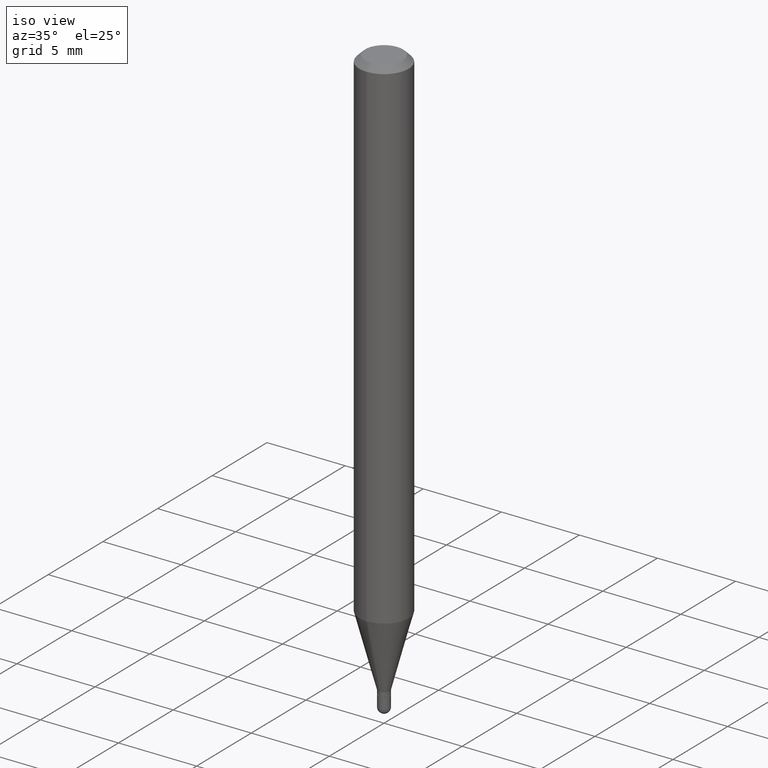
[diagram: clean part render]
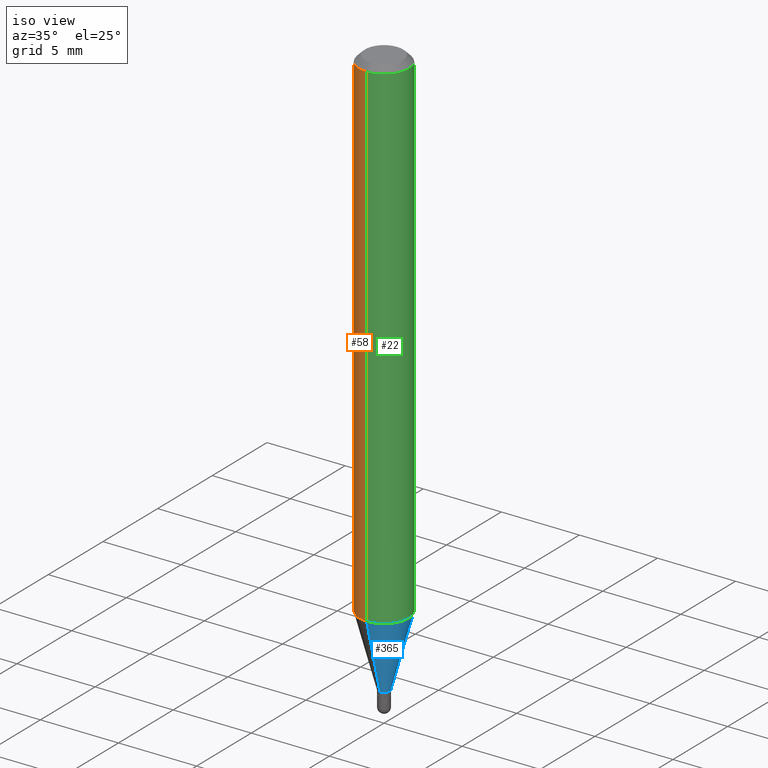
[diagram: same view with three faces highlighted in distinct colors, each labeled with its STEP entity id]
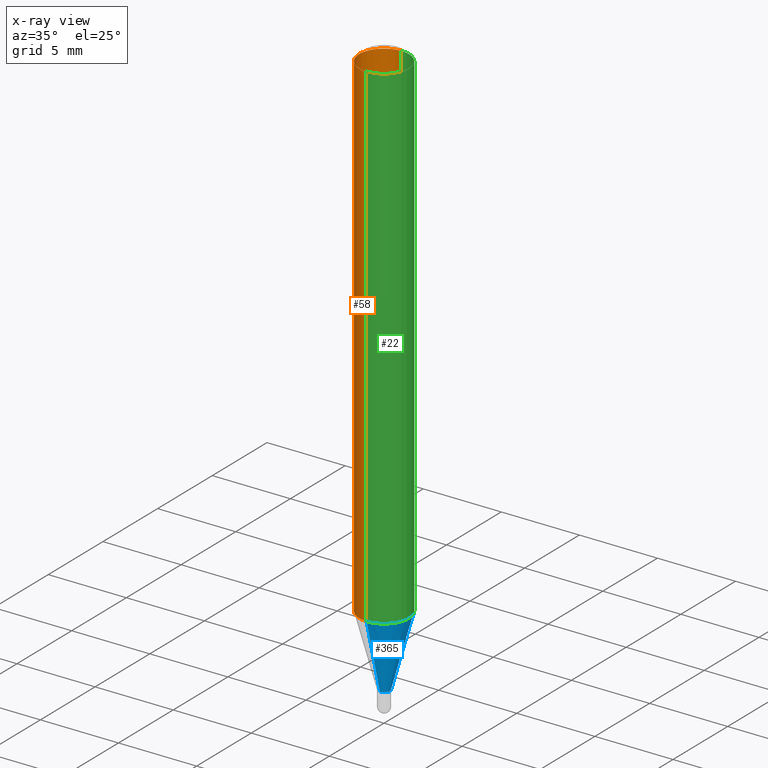
[diagram: x-ray of the same camera — body ghosted, the three highlighted faces saturated]
A machine part, iso view with three faces highlighted in distinct colors.
The next image is the same camera in x-ray (body ghosted, the three faces saturated) — at least one of them is partly hidden behind the body in this view.
Their STEP definitions:

[orange] entity #58 — the highlighted cylindrical surface (edge-blend (fillet) strip) has radius 1.5875 mm, axis along (-0, 0, 1).
#10 = DIRECTION ( 'NONE',  ( -2.445481349067954687E-29, 3.491463376721053422E-15, 1.000000000000000000 ) ) ;
#47 = VERTEX_POINT ( 'NONE', #221 ) ;
#58 = ADVANCED_FACE ( 'NONE', ( #141 ), #139, .T. ) ;
#63 = CIRCLE ( 'NONE', #275, 0.06250000000000000000 ) ;
#71 = DIRECTION ( 'NONE',  ( -6.982962677686265922E-15, -1.000000000000000000, 3.491463376721053028E-15 ) ) ;
#72 = EDGE_CURVE ( 'NONE', #211, #237, #224, .T. ) ;
#76 = CIRCLE ( 'NONE', #440, 0.06250000000000000000 ) ;
#90 = DIRECTION ( 'NONE',  ( -2.445481349067954687E-29, 3.491463376721053422E-15, 1.000000000000000000 ) ) ;
#108 = AXIS2_PLACEMENT_3D ( 'NONE', #109, #145, #71 ) ;
#109 = CARTESIAN_POINT ( 'NONE',  ( 0.000000000000000000, 0.000000000000000000, 0.000000000000000000 ) ) ;
#115 = CARTESIAN_POINT ( 'NONE',  ( 4.440892098500937762E-16, 0.06249999999999993755, -0.01499999999999997863 ) ) ;
#139 = CYLINDRICAL_SURFACE ( 'NONE', #108, 0.06250000000000000000 ) ;
#141 = FACE_OUTER_BOUND ( 'NONE', #278, .T. ) ;
#145 = DIRECTION ( 'NONE',  ( -2.445481349067954687E-29, 3.491463376721053422E-15, 1.000000000000000000 ) ) ;
#192 = VECTOR ( 'NONE', #381, 39.37007874015748143 ) ;
#195 = CARTESIAN_POINT ( 'NONE',  ( -4.364351673553916201E-16, -0.06250000000000000000, 2.182164610450658142E-16 ) ) ;
#207 = VERTEX_POINT ( 'NONE', #280 ) ;
#211 = VERTEX_POINT ( 'NONE', #228 ) ;
#216 = ORIENTED_EDGE ( 'NONE', *, *, #223, .T. ) ;
#221 = CARTESIAN_POINT ( 'NONE',  ( -4.364351673553912750E-16, -0.06250000000000005551, -0.01499999999999954321 ) ) ;
#223 = EDGE_CURVE ( 'NONE', #207, #47, #438, .T. ) ;
#224 = LINE ( 'NONE', #341, #192 ) ;
#228 = CARTESIAN_POINT ( 'NONE',  ( 4.440892098500933817E-16, 0.06249999999999555911, -1.266861561236694467 ) ) ;
#232 = DIRECTION ( 'NONE',  ( -2.445481349067954967E-29, 3.491463376721053817E-15, 1.000000000000000000 ) ) ;
#237 = VERTEX_POINT ( 'NONE', #115 ) ;
#248 = ORIENTED_EDGE ( 'NONE', *, *, #373, .F. ) ;
#275 = AXIS2_PLACEMENT_3D ( 'NONE', #445, #90, #323 ) ;
#278 = EDGE_LOOP ( 'NONE', ( #432, #454, #216, #248 ) ) ;
#280 = CARTESIAN_POINT ( 'NONE',  ( -4.364351673553606573E-16, -0.06250000000000442701, -1.266861561236694023 ) ) ;
#323 = DIRECTION ( 'NONE',  ( -6.982962677686265922E-15, -1.000000000000000000, 4.370956789862821150E-15 ) ) ;
#337 = EDGE_CURVE ( 'NONE', #211, #207, #63, .T. ) ;
#341 = CARTESIAN_POINT ( 'NONE',  ( 4.440892098500625669E-16, 0.06250000000000000000, -2.182164610450658142E-16 ) ) ;
#373 = EDGE_CURVE ( 'NONE', #237, #47, #76, .T. ) ;
#381 = DIRECTION ( 'NONE',  ( -2.445481349067954967E-29, 3.491463376721053817E-15, 1.000000000000000000 ) ) ;
#412 = CARTESIAN_POINT ( 'NONE',  ( 3.668222023601873193E-31, -5.237195065081496267E-17, -0.01499999999999976179 ) ) ;
#432 = ORIENTED_EDGE ( 'NONE', *, *, #72, .F. ) ;
#438 = LINE ( 'NONE', #195, #482 ) ;
#440 = AXIS2_PLACEMENT_3D ( 'NONE', #412, #10, #493 ) ;
#445 = CARTESIAN_POINT ( 'NONE',  ( 3.098086319855446191E-29, -4.423200744433573842E-15, -1.266861561236694245 ) ) ;
#454 = ORIENTED_EDGE ( 'NONE', *, *, #337, .T. ) ;
#482 = VECTOR ( 'NONE', #232, 39.37007874015748143 ) ;
#493 = DIRECTION ( 'NONE',  ( -6.982962677686265922E-15, -1.000000000000000000, 3.483106191921935554E-15 ) ) ;

[blue] entity #365 — the highlighted conical surface has half-angle 15 deg.
#36 = LINE ( 'NONE', #400, #267 ) ;
#45 = VECTOR ( 'NONE', #473, 39.37007874015748854 ) ;
#68 = CIRCLE ( 'NONE', #359, 0.01449999999999992441 ) ;
#78 = ORIENTED_EDGE ( 'NONE', *, *, #241, .F. ) ;
#85 = CARTESIAN_POINT ( 'NONE',  ( 2.735589532676716016E-16, 0.01449999999999487463, -1.445999999999999730 ) ) ;
#96 = FACE_OUTER_BOUND ( 'NONE', #113, .T. ) ;
#102 = DIRECTION ( 'NONE',  ( -2.445481349067954687E-29, 3.491463376721053422E-15, 1.000000000000000000 ) ) ;
#105 = DIRECTION ( 'NONE',  ( -6.982962677686265922E-15, -1.000000000000000000, 4.370956789862821150E-15 ) ) ;
#113 = EDGE_LOOP ( 'NONE', ( #209, #122, #165, #78 ) ) ;
#122 = ORIENTED_EDGE ( 'NONE', *, *, #233, .T. ) ;
#134 = EDGE_CURVE ( 'NONE', #207, #211, #222, .T. ) ;
#153 = CARTESIAN_POINT ( 'NONE',  ( -1.012529588264149623E-16, -0.01450000000000497419, -1.445999999999999730 ) ) ;
#155 = DIRECTION ( 'NONE',  ( 1.839019923739601893E-15, 0.2588190451025252359, 0.9659258262890670910 ) ) ;
#165 = ORIENTED_EDGE ( 'NONE', *, *, #134, .F. ) ;
#201 = CARTESIAN_POINT ( 'NONE',  ( 3.536166030752262621E-29, -5.048656042738642851E-15, -1.445999999999999730 ) ) ;
#203 = EDGE_CURVE ( 'NONE', #452, #486, #68, .T. ) ;
#207 = VERTEX_POINT ( 'NONE', #280 ) ;
#209 = ORIENTED_EDGE ( 'NONE', *, *, #203, .T. ) ;
#211 = VERTEX_POINT ( 'NONE', #228 ) ;
#222 = CIRCLE ( 'NONE', #464, 0.06250000000000000000 ) ;
#228 = CARTESIAN_POINT ( 'NONE',  ( 4.440892098500933817E-16, 0.06249999999999555911, -1.266861561236694467 ) ) ;
#233 = EDGE_CURVE ( 'NONE', #486, #211, #36, .T. ) ;
#241 = EDGE_CURVE ( 'NONE', #452, #207, #320, .T. ) ;
#254 = DIRECTION ( 'NONE',  ( -2.445481349067954687E-29, 3.491463376721053422E-15, 1.000000000000000000 ) ) ;
#267 = VECTOR ( 'NONE', #155, 39.37007874015748854 ) ;
#271 = DIRECTION ( 'NONE',  ( -6.982962677686265922E-15, -1.000000000000000000, 0.000000000000000000 ) ) ;
#280 = CARTESIAN_POINT ( 'NONE',  ( -4.364351673553606573E-16, -0.06250000000000442701, -1.266861561236694023 ) ) ;
#294 = CARTESIAN_POINT ( 'NONE',  ( -1.012529588264149623E-16, -0.01450000000000497419, -1.445999999999999730 ) ) ;
#304 = CARTESIAN_POINT ( 'NONE',  ( 3.098086319855446191E-29, -4.423200744433573842E-15, -1.266861561236694245 ) ) ;
#320 = LINE ( 'NONE', #153, #45 ) ;
#336 = DIRECTION ( 'NONE',  ( -6.982962677686265922E-15, -1.000000000000000000, 0.000000000000000000 ) ) ;
#352 = AXIS2_PLACEMENT_3D ( 'NONE', #485, #254, #336 ) ;
#359 = AXIS2_PLACEMENT_3D ( 'NONE', #201, #477, #271 ) ;
#365 = ADVANCED_FACE ( 'NONE', ( #96 ), #376, .T. ) ;
#376 = CONICAL_SURFACE ( 'NONE', #352, 0.01449999999999992441, 0.2617993877991505181 ) ;
#400 = CARTESIAN_POINT ( 'NONE',  ( 1.030286966852493407E-16, 0.01449999999999487463, -1.445999999999999730 ) ) ;
#452 = VERTEX_POINT ( 'NONE', #294 ) ;
#464 = AXIS2_PLACEMENT_3D ( 'NONE', #304, #102, #105 ) ;
#473 = DIRECTION ( 'NONE',  ( -1.807323732225331717E-15, -0.2588190451025184080, 0.9659258262890689783 ) ) ;
#477 = DIRECTION ( 'NONE',  ( -2.445481349067954687E-29, 3.491463376721053422E-15, 1.000000000000000000 ) ) ;
#485 = CARTESIAN_POINT ( 'NONE',  ( 3.536166030752262621E-29, -5.048656042738642851E-15, -1.445999999999999730 ) ) ;
#486 = VERTEX_POINT ( 'NONE', #85 ) ;

[green] entity #22 — the highlighted cylindrical surface (edge-blend (fillet) strip) has radius 1.5875 mm, axis along (-0, 0, 1).
#14 = EDGE_CURVE ( 'NONE', #47, #237, #351, .T. ) ;
#22 = ADVANCED_FACE ( 'NONE', ( #182 ), #301, .T. ) ;
#47 = VERTEX_POINT ( 'NONE', #221 ) ;
#53 = AXIS2_PLACEMENT_3D ( 'NONE', #186, #303, #106 ) ;
#72 = EDGE_CURVE ( 'NONE', #211, #237, #224, .T. ) ;
#102 = DIRECTION ( 'NONE',  ( -2.445481349067954687E-29, 3.491463376721053422E-15, 1.000000000000000000 ) ) ;
#105 = DIRECTION ( 'NONE',  ( -6.982962677686265922E-15, -1.000000000000000000, 4.370956789862821150E-15 ) ) ;
#106 = DIRECTION ( 'NONE',  ( -6.982962677686265922E-15, -1.000000000000000000, 3.491463376721053028E-15 ) ) ;
#115 = CARTESIAN_POINT ( 'NONE',  ( 4.440892098500937762E-16, 0.06249999999999993755, -0.01499999999999997863 ) ) ;
#134 = EDGE_CURVE ( 'NONE', #207, #211, #222, .T. ) ;
#138 = EDGE_LOOP ( 'NONE', ( #446, #338, #494, #408 ) ) ;
#179 = AXIS2_PLACEMENT_3D ( 'NONE', #460, #189, #346 ) ;
#182 = FACE_OUTER_BOUND ( 'NONE', #138, .T. ) ;
#186 = CARTESIAN_POINT ( 'NONE',  ( 0.000000000000000000, 0.000000000000000000, 0.000000000000000000 ) ) ;
#189 = DIRECTION ( 'NONE',  ( -2.445481349067954687E-29, 3.491463376721053422E-15, 1.000000000000000000 ) ) ;
#192 = VECTOR ( 'NONE', #381, 39.37007874015748143 ) ;
#195 = CARTESIAN_POINT ( 'NONE',  ( -4.364351673553916201E-16, -0.06250000000000000000, 2.182164610450658142E-16 ) ) ;
#207 = VERTEX_POINT ( 'NONE', #280 ) ;
#211 = VERTEX_POINT ( 'NONE', #228 ) ;
#221 = CARTESIAN_POINT ( 'NONE',  ( -4.364351673553912750E-16, -0.06250000000000005551, -0.01499999999999954321 ) ) ;
#222 = CIRCLE ( 'NONE', #464, 0.06250000000000000000 ) ;
#223 = EDGE_CURVE ( 'NONE', #207, #47, #438, .T. ) ;
#224 = LINE ( 'NONE', #341, #192 ) ;
#228 = CARTESIAN_POINT ( 'NONE',  ( 4.440892098500933817E-16, 0.06249999999999555911, -1.266861561236694467 ) ) ;
#232 = DIRECTION ( 'NONE',  ( -2.445481349067954967E-29, 3.491463376721053817E-15, 1.000000000000000000 ) ) ;
#237 = VERTEX_POINT ( 'NONE', #115 ) ;
#280 = CARTESIAN_POINT ( 'NONE',  ( -4.364351673553606573E-16, -0.06250000000000442701, -1.266861561236694023 ) ) ;
#301 = CYLINDRICAL_SURFACE ( 'NONE', #53, 0.06250000000000000000 ) ;
#303 = DIRECTION ( 'NONE',  ( -2.445481349067954687E-29, 3.491463376721053422E-15, 1.000000000000000000 ) ) ;
#304 = CARTESIAN_POINT ( 'NONE',  ( 3.098086319855446191E-29, -4.423200744433573842E-15, -1.266861561236694245 ) ) ;
#338 = ORIENTED_EDGE ( 'NONE', *, *, #72, .T. ) ;
#341 = CARTESIAN_POINT ( 'NONE',  ( 4.440892098500625669E-16, 0.06250000000000000000, -2.182164610450658142E-16 ) ) ;
#346 = DIRECTION ( 'NONE',  ( -6.982962677686265922E-15, -1.000000000000000000, 3.483106191921935554E-15 ) ) ;
#351 = CIRCLE ( 'NONE', #179, 0.06250000000000000000 ) ;
#381 = DIRECTION ( 'NONE',  ( -2.445481349067954967E-29, 3.491463376721053817E-15, 1.000000000000000000 ) ) ;
#408 = ORIENTED_EDGE ( 'NONE', *, *, #223, .F. ) ;
#438 = LINE ( 'NONE', #195, #482 ) ;
#446 = ORIENTED_EDGE ( 'NONE', *, *, #134, .T. ) ;
#460 = CARTESIAN_POINT ( 'NONE',  ( 3.668222023601873193E-31, -5.237195065081496267E-17, -0.01499999999999976179 ) ) ;
#464 = AXIS2_PLACEMENT_3D ( 'NONE', #304, #102, #105 ) ;
#482 = VECTOR ( 'NONE', #232, 39.37007874015748143 ) ;
#494 = ORIENTED_EDGE ( 'NONE', *, *, #14, .F. ) ;